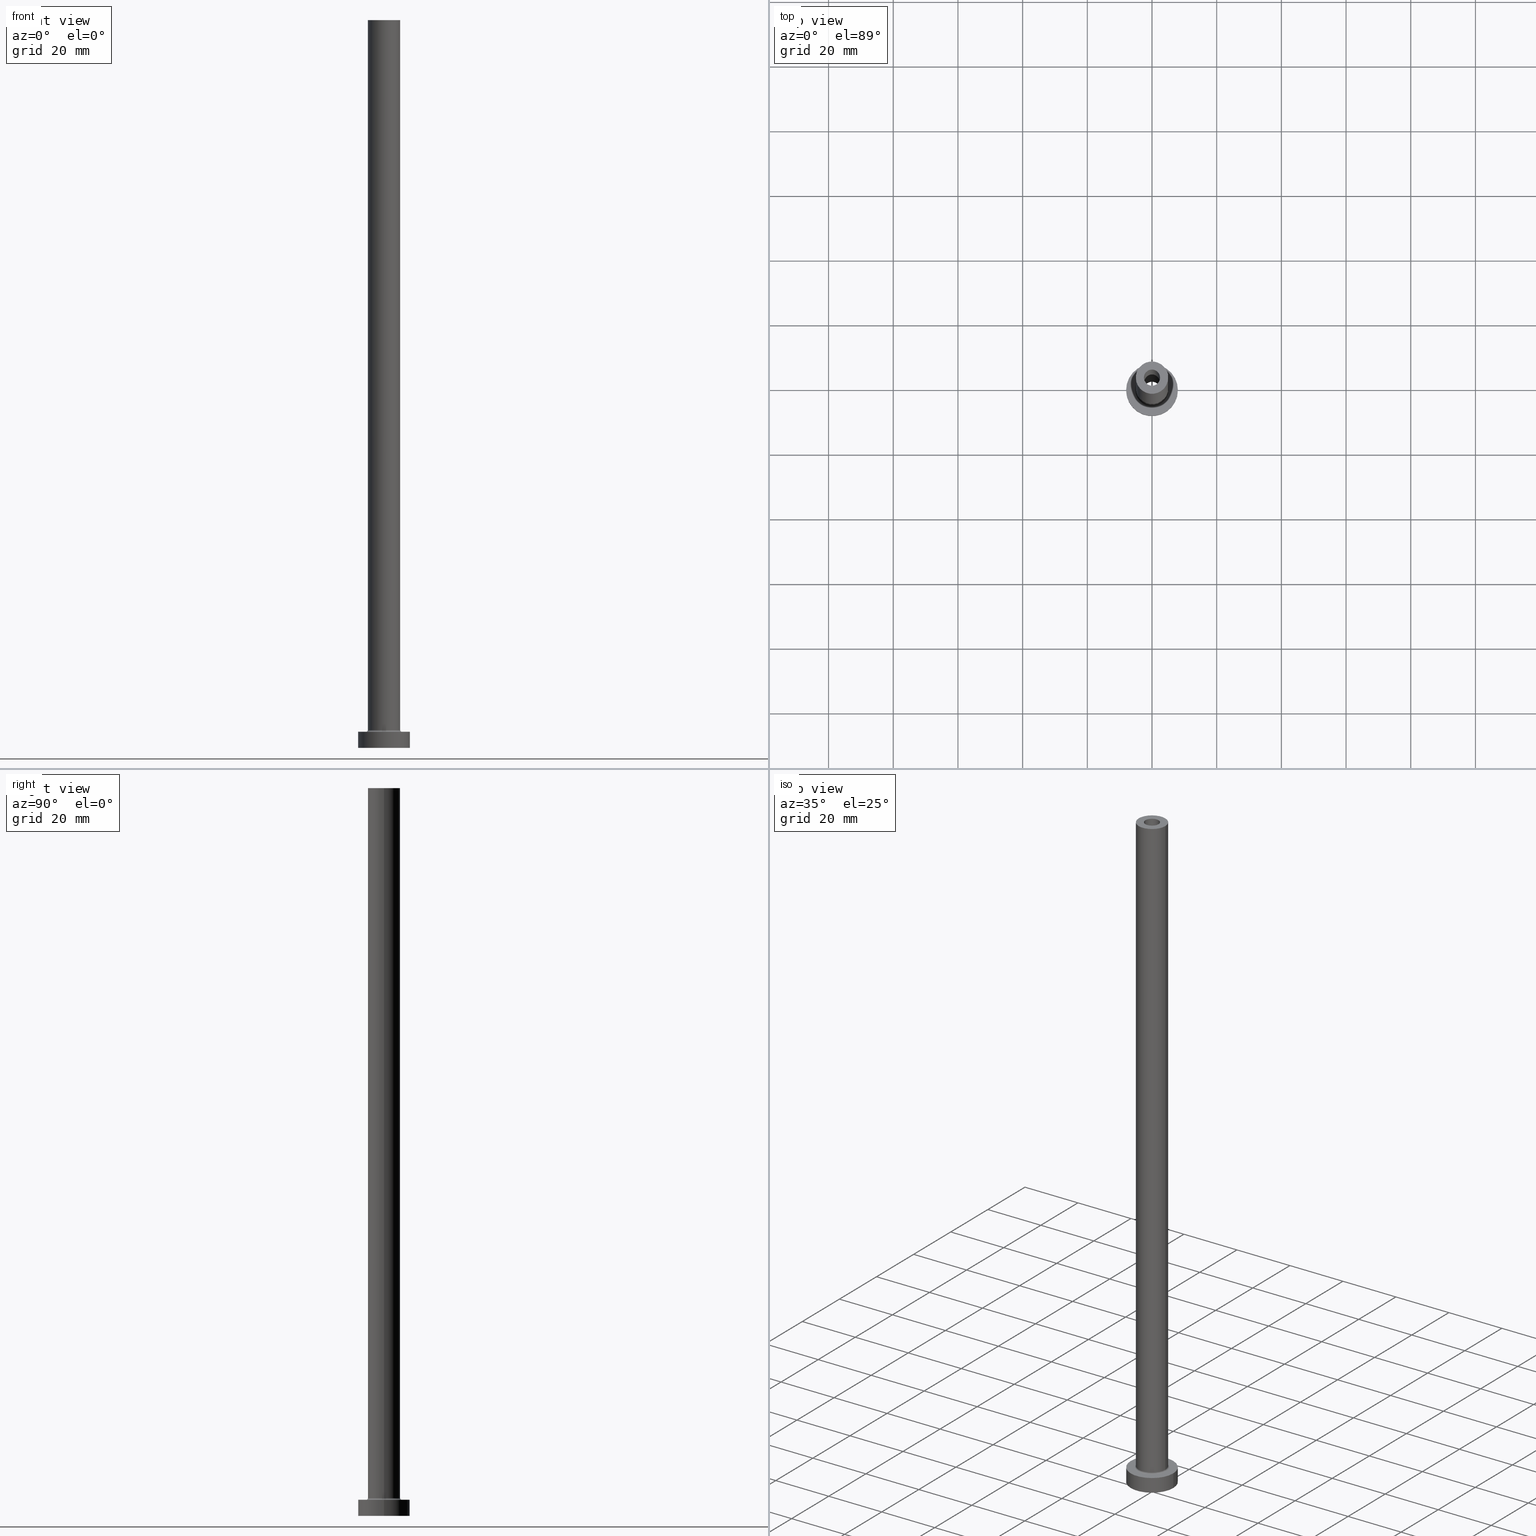
[diagram: canonical four-view strip — front | top / right | iso, engineering-drawing reading convention]
A machine part, canonical four-view strip (front | top / right | iso — engineering-drawing reading convention). The complete STEP part file that produces these views, byte-faithful:
ISO-10303-21;
HEADER;
FILE_DESCRIPTION (( 'STEP AP203' ),
    '1' );
FILE_NAME ('da0d.STEP',
    '2023-02-13T16:59:19',
    ( '' ),
    ( '' ),
    'SwSTEP 2.0',
    'SolidWorks 2019',
    '' );
FILE_SCHEMA (( 'CONFIG_CONTROL_DESIGN' ));
ENDSEC;

DATA;
#1 = CARTESIAN_POINT ( 'NONE',  ( 0.000000000000000000, 0.000000000000000000, 5.000000000000000000 ) ) ;
#2 = ORIENTED_EDGE ( 'NONE', *, *, #53, .F. ) ;
#3 = PRODUCT_DEFINITION_SHAPE ( 'NONE', 'NONE',  #337 ) ;
#4 = FACE_OUTER_BOUND ( 'NONE', #381, .T. ) ;
#5 = EDGE_LOOP ( 'NONE', ( #417, #169, #101, #350 ) ) ;
#6 = PERSON_AND_ORGANIZATION_ROLE ( 'design_supplier' ) ;
#7 = CIRCLE ( 'NONE', #74, 8.000000000000000000 ) ;
#8 = DIRECTION ( 'NONE',  ( -0.000000000000000000, -0.000000000000000000, -1.000000000000000000 ) ) ;
#9 = PERSON_AND_ORGANIZATION_ROLE ( 'creator' ) ;
#10 = CYLINDRICAL_SURFACE ( 'NONE', #221, 5.000000000000000000 ) ;
#11 = ADVANCED_FACE ( 'NONE', ( #149 ), #440, .F. ) ;
#12 = APPROVAL_DATE_TIME ( #219, #306 ) ;
#13 = DIRECTION ( 'NONE',  ( 1.224646799147353207E-16, 1.000000000000000000, -0.000000000000000000 ) ) ;
#14 = AXIS2_PLACEMENT_3D ( 'NONE', #17, #372, #434 ) ;
#15 = CIRCLE ( 'NONE', #267, 2.649999999999999911 ) ;
#16 = DIRECTION ( 'NONE',  ( 1.000000000000000000, 0.000000000000000000, 0.000000000000000000 ) ) ;
#17 = CARTESIAN_POINT ( 'NONE',  ( 0.000000000000000000, 0.000000000000000000, 225.0000000000000000 ) ) ;
#18 = EDGE_CURVE ( 'NONE', #355, #313, #265, .T. ) ;
#19 = CARTESIAN_POINT ( 'NONE',  ( -2.500000000000000000, 0.000000000000000000, 180.0000000000000000 ) ) ;
#20 = CARTESIAN_POINT ( 'NONE',  ( 2.500000000000000000, 3.061616997868383141E-16, 225.0000000000000000 ) ) ;
#21 = AXIS2_PLACEMENT_3D ( 'NONE', #437, #405, #190 ) ;
#22 = SECURITY_CLASSIFICATION ( '', '', #115 ) ;
#23 = DIRECTION ( 'NONE',  ( 0.000000000000000000, 0.000000000000000000, 1.000000000000000000 ) ) ;
#24 = ADVANCED_FACE ( 'NONE', ( #118 ), #10, .T. ) ;
#25 = DIRECTION ( 'NONE',  ( 0.000000000000000000, 0.000000000000000000, -1.000000000000000000 ) ) ;
#26 = ORIENTED_EDGE ( 'NONE', *, *, #241, .T. ) ;
#27 = DIRECTION ( 'NONE',  ( -0.000000000000000000, -0.000000000000000000, -1.000000000000000000 ) ) ;
#28 = CIRCLE ( 'NONE', #63, 5.500000000000000000 ) ;
#29 = DIRECTION ( 'NONE',  ( -1.000000000000000000, 0.000000000000000000, 0.000000000000000000 ) ) ;
#30 = EDGE_CURVE ( 'NONE', #216, #31, #377, .T. ) ;
#31 = VERTEX_POINT ( 'NONE', #161 ) ;
#32 = CARTESIAN_POINT ( 'NONE',  ( 8.000000000000000000, 9.797174393178825657E-16, 5.000000000000000000 ) ) ;
#33 = ORIENTED_EDGE ( 'NONE', *, *, #30, .T. ) ;
#34 = DIRECTION ( 'NONE',  ( 0.000000000000000000, 0.000000000000000000, 1.000000000000000000 ) ) ;
#35 = VERTEX_POINT ( 'NONE', #124 ) ;
#36 = TOROIDAL_SURFACE ( 'NONE', #393, 5.500000000000000000, 0.5000000000000000000 ) ;
#37 = LOCAL_TIME ( 17, 59, 19.00000000000000000, #338 ) ;
#38 = CARTESIAN_POINT ( 'NONE',  ( 0.000000000000000000, 0.000000000000000000, 180.0000000000000000 ) ) ;
#39 = VERTEX_POINT ( 'NONE', #220 ) ;
#40 = APPLICATION_PROTOCOL_DEFINITION ( 'international standard', 'config_control_design', 1994, #89 ) ;
#41 = ORIENTED_EDGE ( 'NONE', *, *, #53, .T. ) ;
#42 = AXIS2_PLACEMENT_3D ( 'NONE', #300, #264, #119 ) ;
#43 = CARTESIAN_POINT ( 'NONE',  ( 0.000000000000000000, 0.000000000000000000, 5.000000000000000000 ) ) ;
#44 = MECHANICAL_CONTEXT ( 'NONE', #89, 'mechanical' ) ;
#45 = EDGE_CURVE ( 'NONE', #39, #305, #193, .T. ) ;
#46 = DIRECTION ( 'NONE',  ( -0.000000000000000000, -0.000000000000000000, -1.000000000000000000 ) ) ;
#47 = MANIFOLD_SOLID_BREP ( 'Odebrat vysunut�m4', #70 ) ;
#48 = CARTESIAN_POINT ( 'NONE',  ( -5.500000000000000000, 6.735557395310442023E-16, 5.500000000000005329 ) ) ;
#49 = APPROVAL_ROLE ( '' ) ;
#50 = CARTESIAN_POINT ( 'NONE',  ( -2.649999999999999911, 0.000000000000000000, 0.000000000000000000 ) ) ;
#51 = DATE_AND_TIME ( #263, #385 ) ;
#52 = LINE ( 'NONE', #186, #103 ) ;
#53 = EDGE_CURVE ( 'NONE', #313, #67, #448, .T. ) ;
#54 = CARTESIAN_POINT ( 'NONE',  ( 0.000000000000000000, 0.000000000000000000, 5.000000000000000000 ) ) ;
#55 = CARTESIAN_POINT ( 'NONE',  ( 0.000000000000000000, 0.000000000000000000, 0.000000000000000000 ) ) ;
#56 = CYLINDRICAL_SURFACE ( 'NONE', #303, 2.500000000000000000 ) ;
#57 = CIRCLE ( 'NONE', #328, 2.500000000000000000 ) ;
#58 = EDGE_CURVE ( 'NONE', #235, #286, #356, .T. ) ;
#59 = DIRECTION ( 'NONE',  ( 0.000000000000000000, 0.000000000000000000, -1.000000000000000000 ) ) ;
#60 = DIRECTION ( 'NONE',  ( 1.000000000000000000, 0.000000000000000000, -0.000000000000000000 ) ) ;
#61 = DIRECTION ( 'NONE',  ( 0.000000000000000000, 0.000000000000000000, 1.000000000000000000 ) ) ;
#62 = ORIENTED_EDGE ( 'NONE', *, *, #370, .T. ) ;
#63 = AXIS2_PLACEMENT_3D ( 'NONE', #314, #109, #422 ) ;
#64 = AXIS2_PLACEMENT_3D ( 'NONE', #66, #61, #357 ) ;
#65 = CC_DESIGN_APPROVAL ( #342, ( #225 ) ) ;
#66 = CARTESIAN_POINT ( 'NONE',  ( 0.000000000000000000, 0.000000000000000000, 180.0000000000000000 ) ) ;
#67 = VERTEX_POINT ( 'NONE', #363 ) ;
#68 = CARTESIAN_POINT ( 'NONE',  ( 0.000000000000000000, 0.000000000000000000, 5.000000000000000000 ) ) ;
#69 = ORIENTED_EDGE ( 'NONE', *, *, #370, .F. ) ;
#70 = CLOSED_SHELL ( 'NONE', ( #205, #312, #415, #24, #191, #233, #375, #158, #266, #73, #299, #185, #141, #11 ) ) ;
#71 = CARTESIAN_POINT ( 'NONE',  ( -5.000000000000000000, 0.000000000000000000, 5.500000000000005329 ) ) ;
#72 = ORIENTED_EDGE ( 'NONE', *, *, #279, .F. ) ;
#73 = ADVANCED_FACE ( 'NONE', ( #262, #369 ), #367, .T. ) ;
#74 = AXIS2_PLACEMENT_3D ( 'NONE', #199, #165, #171 ) ;
#75 =( NAMED_UNIT ( * ) SI_UNIT ( $, .STERADIAN. ) SOLID_ANGLE_UNIT ( ) );
#76 = ORIENTED_EDGE ( 'NONE', *, *, #79, .F. ) ;
#77 = PERSON_AND_ORGANIZATION_ROLE ( 'creator' ) ;
#78 = CARTESIAN_POINT ( 'NONE',  ( -5.000000000000000000, 0.000000000000000000, 225.0000000000000000 ) ) ;
#79 = EDGE_CURVE ( 'NONE', #313, #245, #153, .T. ) ;
#80 = DATE_AND_TIME ( #436, #438 ) ;
#81 = CARTESIAN_POINT ( 'NONE',  ( -2.500000000000000000, 0.000000000000000000, 225.0000000000000000 ) ) ;
#82 = CIRCLE ( 'NONE', #413, 5.500000000000000000 ) ;
#83 = CARTESIAN_POINT ( 'NONE',  ( 0.000000000000000000, 0.000000000000000000, 225.0000000000000000 ) ) ;
#84 = COORDINATED_UNIVERSAL_TIME_OFFSET ( 1, 0, .AHEAD. ) ;
#85 = CARTESIAN_POINT ( 'NONE',  ( 0.000000000000000000, 0.000000000000000000, 180.0000000000000000 ) ) ;
#86 = PERSON_AND_ORGANIZATION ( #196, #402 ) ;
#87 = DIRECTION ( 'NONE',  ( -1.000000000000000000, 1.224646799147351482E-16, 0.000000000000000000 ) ) ;
#88 = CARTESIAN_POINT ( 'NONE',  ( 0.000000000000000000, 0.000000000000000000, 225.0000000000000000 ) ) ;
#89 = APPLICATION_CONTEXT ( 'configuration controlled 3d designs of mechanical parts and assemblies' ) ;
#90 = FACE_OUTER_BOUND ( 'NONE', #167, .T. ) ;
#91 = ORIENTED_EDGE ( 'NONE', *, *, #404, .F. ) ;
#92 = EDGE_CURVE ( 'NONE', #419, #67, #52, .T. ) ;
#93 = FACE_BOUND ( 'NONE', #177, .T. ) ;
#94 = VECTOR ( 'NONE', #335, 1000.000000000000000 ) ;
#95 = AXIS2_PLACEMENT_3D ( 'NONE', #160, #188, #228 ) ;
#96 = CYLINDRICAL_SURFACE ( 'NONE', #283, 8.000000000000000000 ) ;
#97 = CIRCLE ( 'NONE', #384, 8.000000000000000000 ) ;
#98 = VERTEX_POINT ( 'NONE', #298 ) ;
#99 = DIRECTION ( 'NONE',  ( 0.000000000000000000, 0.000000000000000000, -1.000000000000000000 ) ) ;
#100 = DIRECTION ( 'NONE',  ( -0.000000000000000000, -0.000000000000000000, -1.000000000000000000 ) ) ;
#101 = ORIENTED_EDGE ( 'NONE', *, *, #421, .T. ) ;
#102 = EDGE_CURVE ( 'NONE', #39, #35, #214, .T. ) ;
#103 = VECTOR ( 'NONE', #46, 1000.000000000000000 ) ;
#104 = FACE_OUTER_BOUND ( 'NONE', #396, .T. ) ;
#105 = ORIENTED_EDGE ( 'NONE', *, *, #45, .T. ) ;
#106 =( GEOMETRIC_REPRESENTATION_CONTEXT ( 3 ) GLOBAL_UNCERTAINTY_ASSIGNED_CONTEXT ( ( #397 ) ) GLOBAL_UNIT_ASSIGNED_CONTEXT ( ( #390, #107, #75 ) ) REPRESENTATION_CONTEXT ( 'NONE', 'WORKASPACE' ) );
#107 =( NAMED_UNIT ( * ) PLANE_ANGLE_UNIT ( ) SI_UNIT ( $, .RADIAN. ) );
#108 = ORIENTED_EDGE ( 'NONE', *, *, #150, .T. ) ;
#109 = DIRECTION ( 'NONE',  ( -0.000000000000000000, -0.000000000000000000, -1.000000000000000000 ) ) ;
#110 = EDGE_CURVE ( 'NONE', #98, #305, #274, .T. ) ;
#111 = ORIENTED_EDGE ( 'NONE', *, *, #45, .F. ) ;
#112 = DIRECTION ( 'NONE',  ( -0.000000000000000000, -0.000000000000000000, -1.000000000000000000 ) ) ;
#113 = ORIENTED_EDGE ( 'NONE', *, *, #58, .F. ) ;
#114 = AXIS2_PLACEMENT_3D ( 'NONE', #129, #126, #382 ) ;
#115 = SECURITY_CLASSIFICATION_LEVEL ( 'unclassified' ) ;
#116 = ORIENTED_EDGE ( 'NONE', *, *, #404, .T. ) ;
#117 = EDGE_CURVE ( 'NONE', #31, #289, #257, .T. ) ;
#118 = FACE_OUTER_BOUND ( 'NONE', #181, .T. ) ;
#119 = DIRECTION ( 'NONE',  ( 1.000000000000000000, 0.000000000000000000, 0.000000000000000000 ) ) ;
#120 = COORDINATED_UNIVERSAL_TIME_OFFSET ( 1, 0, .AHEAD. ) ;
#121 = APPROVAL_PERSON_ORGANIZATION ( #184, #326, #294 ) ;
#122 = CARTESIAN_POINT ( 'NONE',  ( 0.000000000000000000, 0.000000000000000000, 225.0000000000000000 ) ) ;
#123 = EDGE_CURVE ( 'NONE', #209, #144, #458, .T. ) ;
#124 = CARTESIAN_POINT ( 'NONE',  ( 2.500000000000000000, 3.061616997868383141E-16, 225.0000000000000000 ) ) ;
#125 = DIRECTION ( 'NONE',  ( -0.000000000000000000, -0.000000000000000000, -1.000000000000000000 ) ) ;
#126 = DIRECTION ( 'NONE',  ( -0.000000000000000000, -0.000000000000000000, -1.000000000000000000 ) ) ;
#127 = AXIS2_PLACEMENT_3D ( 'NONE', #364, #151, #371 ) ;
#128 = ORIENTED_EDGE ( 'NONE', *, *, #79, .T. ) ;
#129 = CARTESIAN_POINT ( 'NONE',  ( 0.000000000000000000, 0.000000000000000000, 5.000000000000000000 ) ) ;
#130 = ORIENTED_EDGE ( 'NONE', *, *, #123, .T. ) ;
#131 = PLANE ( 'NONE',  #224 ) ;
#132 = CARTESIAN_POINT ( 'NONE',  ( -2.649999999999999911, 0.000000000000000000, 180.0000000000000000 ) ) ;
#133 = CIRCLE ( 'NONE', #260, 0.5000000000000004441 ) ;
#134 = DIRECTION ( 'NONE',  ( 0.000000000000000000, 0.000000000000000000, 1.000000000000000000 ) ) ;
#135 = EDGE_CURVE ( 'NONE', #67, #313, #208, .T. ) ;
#136 = ORIENTED_EDGE ( 'NONE', *, *, #246, .T. ) ;
#137 = DIRECTION ( 'NONE',  ( 1.000000000000000000, 0.000000000000000000, 0.000000000000000000 ) ) ;
#138 = ORIENTED_EDGE ( 'NONE', *, *, #197, .T. ) ;
#139 = ORIENTED_EDGE ( 'NONE', *, *, #435, .F. ) ;
#140 = AXIS2_PLACEMENT_3D ( 'NONE', #168, #27, #450 ) ;
#141 = ADVANCED_FACE ( 'NONE', ( #399, #259 ), #223, .F. ) ;
#142 = ORIENTED_EDGE ( 'NONE', *, *, #110, .F. ) ;
#143 = DIRECTION ( 'NONE',  ( 1.000000000000000000, 0.000000000000000000, 0.000000000000000000 ) ) ;
#144 = VERTEX_POINT ( 'NONE', #50 ) ;
#145 = PERSON_AND_ORGANIZATION ( #196, #402 ) ;
#146 = ORIENTED_EDGE ( 'NONE', *, *, #430, .T. ) ;
#147 = CIRCLE ( 'NONE', #452, 8.000000000000000000 ) ;
#148 = DATE_TIME_ROLE ( 'classification_date' ) ;
#149 = FACE_OUTER_BOUND ( 'NONE', #179, .T. ) ;
#150 = EDGE_CURVE ( 'NONE', #35, #98, #341, .T. ) ;
#151 = DIRECTION ( 'NONE',  ( 0.000000000000000000, 0.000000000000000000, 1.000000000000000000 ) ) ;
#152 = DIRECTION ( 'NONE',  ( -1.000000000000000000, 0.000000000000000000, 0.000000000000000000 ) ) ;
#153 = CIRCLE ( 'NONE', #155, 0.5000000000000004441 ) ;
#154 = APPROVAL_DATE_TIME ( #255, #326 ) ;
#155 = AXIS2_PLACEMENT_3D ( 'NONE', #48, #13, #87 ) ;
#156 = DIRECTION ( 'NONE',  ( 1.000000000000000000, 0.000000000000000000, -0.000000000000000000 ) ) ;
#157 = VECTOR ( 'NONE', #25, 1000.000000000000000 ) ;
#158 = ADVANCED_FACE ( 'NONE', ( #93, #90 ), #131, .F. ) ;
#159 = LOCAL_TIME ( 17, 59, 19.00000000000000000, #84 ) ;
#160 = CARTESIAN_POINT ( 'NONE',  ( 0.000000000000000000, 0.000000000000000000, 225.0000000000000000 ) ) ;
#161 = CARTESIAN_POINT ( 'NONE',  ( -8.000000000000000000, 0.000000000000000000, 5.000000000000000000 ) ) ;
#162 = FACE_OUTER_BOUND ( 'NONE', #315, .T. ) ;
#163 = CC_DESIGN_PERSON_AND_ORGANIZATION_ASSIGNMENT ( #226, #77, ( #337 ) ) ;
#164 = AXIS2_PLACEMENT_3D ( 'NONE', #178, #215, #392 ) ;
#165 = DIRECTION ( 'NONE',  ( 0.000000000000000000, 0.000000000000000000, 1.000000000000000000 ) ) ;
#166 = DIRECTION ( 'NONE',  ( 0.000000000000000000, 0.000000000000000000, -1.000000000000000000 ) ) ;
#167 = EDGE_LOOP ( 'NONE', ( #72, #175 ) ) ;
#168 = CARTESIAN_POINT ( 'NONE',  ( 0.000000000000000000, 0.000000000000000000, 225.0000000000000000 ) ) ;
#169 = ORIENTED_EDGE ( 'NONE', *, *, #58, .T. ) ;
#170 = CC_DESIGN_PERSON_AND_ORGANIZATION_ASSIGNMENT ( #406, #6, ( #225 ) ) ;
#171 = DIRECTION ( 'NONE',  ( 1.000000000000000000, 0.000000000000000000, 0.000000000000000000 ) ) ;
#172 = CIRCLE ( 'NONE', #238, 5.000000000000000000 ) ;
#173 = CC_DESIGN_SECURITY_CLASSIFICATION ( #22, ( #225 ) ) ;
#174 = DIRECTION ( 'NONE',  ( 0.000000000000000000, 0.000000000000000000, -1.000000000000000000 ) ) ;
#175 = ORIENTED_EDGE ( 'NONE', *, *, #349, .F. ) ;
#176 = DIRECTION ( 'NONE',  ( 0.000000000000000000, 0.000000000000000000, -1.000000000000000000 ) ) ;
#177 = EDGE_LOOP ( 'NONE', ( #183, #423 ) ) ;
#178 = CARTESIAN_POINT ( 'NONE',  ( 0.000000000000000000, 0.000000000000000000, 225.0000000000000000 ) ) ;
#179 = EDGE_LOOP ( 'NONE', ( #324, #136, #105, #142 ) ) ;
#180 = CC_DESIGN_APPROVAL ( #326, ( #337 ) ) ;
#181 = EDGE_LOOP ( 'NONE', ( #359, #247, #451, #319 ) ) ;
#182 = PLANE ( 'NONE',  #317 ) ;
#183 = ORIENTED_EDGE ( 'NONE', *, *, #409, .F. ) ;
#184 = PERSON_AND_ORGANIZATION ( #196, #402 ) ;
#185 = ADVANCED_FACE ( 'NONE', ( #236 ), #273, .F. ) ;
#186 = CARTESIAN_POINT ( 'NONE',  ( 5.000000000000000000, 6.123233995736766282E-16, 225.0000000000000000 ) ) ;
#187 = AXIS2_PLACEMENT_3D ( 'NONE', #85, #327, #330 ) ;
#188 = DIRECTION ( 'NONE',  ( 0.000000000000000000, 0.000000000000000000, -1.000000000000000000 ) ) ;
#189 = PERSON_AND_ORGANIZATION_ROLE ( 'classification_officer' ) ;
#190 = DIRECTION ( 'NONE',  ( 1.000000000000000000, 0.000000000000000000, 0.000000000000000000 ) ) ;
#191 = ADVANCED_FACE ( 'NONE', ( #378 ), #96, .T. ) ;
#192 = APPROVAL_STATUS ( 'not_yet_approved' ) ;
#193 = LINE ( 'NONE', #81, #94 ) ;
#194 = PRODUCT ( 'da0d', 'da0d', '', ( #44 ) ) ;
#195 = DIRECTION ( 'NONE',  ( 1.000000000000000000, 0.000000000000000000, -0.000000000000000000 ) ) ;
#196 = PERSON ( 'NEUR�EN�', 'NEUR�EN�', 'NEUR�EN�', ('NEUR�EN�'), ('NEUR�EN�'), ('NEUR�EN�') ) ;
#197 = EDGE_CURVE ( 'NONE', #212, #245, #82, .T. ) ;
#198 = CARTESIAN_POINT ( 'NONE',  ( 0.000000000000000000, 0.000000000000000000, 225.0000000000000000 ) ) ;
#199 = CARTESIAN_POINT ( 'NONE',  ( 0.000000000000000000, 0.000000000000000000, 0.000000000000000000 ) ) ;
#200 = ORIENTED_EDGE ( 'NONE', *, *, #18, .T. ) ;
#201 = AXIS2_PLACEMENT_3D ( 'NONE', #227, #125, #432 ) ;
#202 = CARTESIAN_POINT ( 'NONE',  ( -8.000000000000000000, 0.000000000000000000, 0.000000000000000000 ) ) ;
#203 = ORIENTED_EDGE ( 'NONE', *, *, #421, .F. ) ;
#204 = DIRECTION ( 'NONE',  ( -1.000000000000000000, 0.000000000000000000, 0.000000000000000000 ) ) ;
#205 = ADVANCED_FACE ( 'NONE', ( #304 ), #56, .F. ) ;
#206 = DIRECTION ( 'NONE',  ( 1.000000000000000000, 0.000000000000000000, 0.000000000000000000 ) ) ;
#207 = ADVANCED_BREP_SHAPE_REPRESENTATION ( 'da0d', ( #47, #127 ), #106 ) ;
#208 = CIRCLE ( 'NONE', #21, 5.000000000000000000 ) ;
#209 = VERTEX_POINT ( 'NONE', #444 ) ;
#210 = CARTESIAN_POINT ( 'NONE',  ( 5.500000000000000000, 0.000000000000000000, 5.500000000000005329 ) ) ;
#211 = PRODUCT_RELATED_PRODUCT_CATEGORY ( 'detail', '', ( #194 ) ) ;
#212 = VERTEX_POINT ( 'NONE', #340 ) ;
#213 = ORIENTED_EDGE ( 'NONE', *, *, #117, .F. ) ;
#214 = CIRCLE ( 'NONE', #14, 2.500000000000000000 ) ;
#215 = DIRECTION ( 'NONE',  ( 0.000000000000000000, 0.000000000000000000, 1.000000000000000000 ) ) ;
#216 = VERTEX_POINT ( 'NONE', #345 ) ;
#217 = VECTOR ( 'NONE', #166, 1000.000000000000000 ) ;
#218 = ORIENTED_EDGE ( 'NONE', *, *, #398, .F. ) ;
#219 = DATE_AND_TIME ( #288, #37 ) ;
#220 = CARTESIAN_POINT ( 'NONE',  ( -2.500000000000000000, 0.000000000000000000, 225.0000000000000000 ) ) ;
#221 = AXIS2_PLACEMENT_3D ( 'NONE', #122, #290, #152 ) ;
#222 = DATE_TIME_ROLE ( 'creation_date' ) ;
#223 = PLANE ( 'NONE',  #336 ) ;
#224 = AXIS2_PLACEMENT_3D ( 'NONE', #55, #276, #60 ) ;
#225 = PRODUCT_DEFINITION_FORMATION_WITH_SPECIFIED_SOURCE ( 'LIBOVOLN�', '', #194, .NOT_KNOWN. ) ;
#226 = PERSON_AND_ORGANIZATION ( #196, #402 ) ;
#227 = CARTESIAN_POINT ( 'NONE',  ( 0.000000000000000000, 0.000000000000000000, 0.000000000000000000 ) ) ;
#228 = DIRECTION ( 'NONE',  ( -1.000000000000000000, 0.000000000000000000, 0.000000000000000000 ) ) ;
#229 = APPLICATION_PROTOCOL_DEFINITION ( 'international standard', 'config_control_design', 1994, #346 ) ;
#230 = CARTESIAN_POINT ( 'NONE',  ( -8.000000000000000000, 0.000000000000000000, 5.000000000000000000 ) ) ;
#231 = CIRCLE ( 'NONE', #64, 2.500000000000000000 ) ;
#232 = DIRECTION ( 'NONE',  ( 0.000000000000000000, 0.000000000000000000, 1.000000000000000000 ) ) ;
#233 = ADVANCED_FACE ( 'NONE', ( #446 ), #243, .T. ) ;
#234 = FACE_OUTER_BOUND ( 'NONE', #352, .T. ) ;
#235 = VERTEX_POINT ( 'NONE', #410 ) ;
#236 = FACE_OUTER_BOUND ( 'NONE', #5, .T. ) ;
#237 = ORIENTED_EDGE ( 'NONE', *, *, #246, .F. ) ;
#238 = AXIS2_PLACEMENT_3D ( 'NONE', #88, #232, #308 ) ;
#239 = APPROVAL_PERSON_ORGANIZATION ( #86, #306, #49 ) ;
#240 = DIRECTION ( 'NONE',  ( -1.000000000000000000, 0.000000000000000000, 0.000000000000000000 ) ) ;
#241 = EDGE_CURVE ( 'NONE', #235, #209, #310, .T. ) ;
#242 = ORIENTED_EDGE ( 'NONE', *, *, #117, .T. ) ;
#243 = CYLINDRICAL_SURFACE ( 'NONE', #114, 8.000000000000000000 ) ;
#244 = DIRECTION ( 'NONE',  ( 0.000000000000000000, 0.000000000000000000, 1.000000000000000000 ) ) ;
#245 = VERTEX_POINT ( 'NONE', #442 ) ;
#246 = EDGE_CURVE ( 'NONE', #35, #39, #57, .T. ) ;
#247 = ORIENTED_EDGE ( 'NONE', *, *, #92, .T. ) ;
#248 = LINE ( 'NONE', #280, #428 ) ;
#249 = ORIENTED_EDGE ( 'NONE', *, *, #435, .T. ) ;
#250 = CARTESIAN_POINT ( 'NONE',  ( -5.000000000000000000, 0.000000000000000000, 225.0000000000000000 ) ) ;
#251 = ORIENTED_EDGE ( 'NONE', *, *, #320, .F. ) ;
#252 = ORIENTED_EDGE ( 'NONE', *, *, #449, .F. ) ;
#253 = TOROIDAL_SURFACE ( 'NONE', #373, 5.500000000000000000, 0.5000000000000000000 ) ;
#254 = CC_DESIGN_PERSON_AND_ORGANIZATION_ASSIGNMENT ( #366, #189, ( #22 ) ) ;
#255 = DATE_AND_TIME ( #433, #379 ) ;
#256 = ORIENTED_EDGE ( 'NONE', *, *, #349, .T. ) ;
#257 = LINE ( 'NONE', #230, #358 ) ;
#258 = CC_DESIGN_PERSON_AND_ORGANIZATION_ASSIGNMENT ( #325, #9, ( #225 ) ) ;
#259 = FACE_OUTER_BOUND ( 'NONE', #387, .T. ) ;
#260 = AXIS2_PLACEMENT_3D ( 'NONE', #210, #316, #174 ) ;
#261 = APPROVAL_STATUS ( 'not_yet_approved' ) ;
#262 = FACE_BOUND ( 'NONE', #391, .T. ) ;
#263 = CALENDAR_DATE ( 2023, 13, 2 ) ;
#264 = DIRECTION ( 'NONE',  ( 0.000000000000000000, 0.000000000000000000, 1.000000000000000000 ) ) ;
#265 = LINE ( 'NONE', #78, #334 ) ;
#266 = ADVANCED_FACE ( 'NONE', ( #234 ), #376, .T. ) ;
#267 = AXIS2_PLACEMENT_3D ( 'NONE', #454, #100, #424 ) ;
#268 = DIRECTION ( 'NONE',  ( -0.000000000000000000, -0.000000000000000000, -1.000000000000000000 ) ) ;
#269 = ORIENTED_EDGE ( 'NONE', *, *, #398, .T. ) ;
#270 = CARTESIAN_POINT ( 'NONE',  ( 2.649999999999999911, 3.245314017740485962E-16, 187.4953318805773677 ) ) ;
#271 = ORIENTED_EDGE ( 'NONE', *, *, #102, .T. ) ;
#272 = EDGE_CURVE ( 'NONE', #355, #419, #172, .T. ) ;
#273 = CYLINDRICAL_SURFACE ( 'NONE', #275, 2.649999999999999911 ) ;
#274 = CIRCLE ( 'NONE', #187, 2.500000000000000000 ) ;
#275 = AXIS2_PLACEMENT_3D ( 'NONE', #412, #59, #204 ) ;
#276 = DIRECTION ( 'NONE',  ( 0.000000000000000000, 0.000000000000000000, 1.000000000000000000 ) ) ;
#277 = DIRECTION ( 'NONE',  ( 0.000000000000000000, 0.000000000000000000, -1.000000000000000000 ) ) ;
#278 = ORIENTED_EDGE ( 'NONE', *, *, #135, .F. ) ;
#279 = EDGE_CURVE ( 'NONE', #289, #309, #7, .T. ) ;
#280 = CARTESIAN_POINT ( 'NONE',  ( -2.649999999999999911, 0.000000000000000000, 187.4953318805773677 ) ) ;
#281 = EDGE_LOOP ( 'NONE', ( #76, #278, #455, #252 ) ) ;
#282 = CARTESIAN_POINT ( 'NONE',  ( 5.000000000000000000, 6.123233995736766282E-16, 225.0000000000000000 ) ) ;
#283 = AXIS2_PLACEMENT_3D ( 'NONE', #54, #268, #240 ) ;
#284 = ORIENTED_EDGE ( 'NONE', *, *, #110, .T. ) ;
#285 = DIRECTION ( 'NONE',  ( 0.000000000000000000, 0.000000000000000000, 1.000000000000000000 ) ) ;
#286 = VERTEX_POINT ( 'NONE', #132 ) ;
#287 = ORIENTED_EDGE ( 'NONE', *, *, #272, .T. ) ;
#288 = CALENDAR_DATE ( 2023, 13, 2 ) ;
#289 = VERTEX_POINT ( 'NONE', #202 ) ;
#290 = DIRECTION ( 'NONE',  ( -0.000000000000000000, -0.000000000000000000, -1.000000000000000000 ) ) ;
#291 = CC_DESIGN_DATE_AND_TIME_ASSIGNMENT ( #80, #222, ( #337 ) ) ;
#292 = PERSON_AND_ORGANIZATION_ROLE ( 'design_owner' ) ;
#293 = CARTESIAN_POINT ( 'NONE',  ( 0.000000000000000000, 0.000000000000000000, 180.0000000000000000 ) ) ;
#294 = APPROVAL_ROLE ( '' ) ;
#295 = DIRECTION ( 'NONE',  ( 0.000000000000000000, 0.000000000000000000, 1.000000000000000000 ) ) ;
#296 = VECTOR ( 'NONE', #112, 1000.000000000000000 ) ;
#297 = CC_DESIGN_APPROVAL ( #306, ( #22 ) ) ;
#298 = CARTESIAN_POINT ( 'NONE',  ( 2.500000000000000000, 3.061616997868383141E-16, 180.0000000000000000 ) ) ;
#299 = ADVANCED_FACE ( 'NONE', ( #411 ), #36, .F. ) ;
#300 = CARTESIAN_POINT ( 'NONE',  ( 0.000000000000000000, 0.000000000000000000, 180.0000000000000000 ) ) ;
#301 = AXIS2_PLACEMENT_3D ( 'NONE', #332, #365, #339 ) ;
#302 = DIRECTION ( 'NONE',  ( -1.000000000000000000, 0.000000000000000000, 0.000000000000000000 ) ) ;
#303 = AXIS2_PLACEMENT_3D ( 'NONE', #198, #99, #302 ) ;
#304 = FACE_OUTER_BOUND ( 'NONE', #344, .T. ) ;
#305 = VERTEX_POINT ( 'NONE', #19 ) ;
#306 = APPROVAL ( #192, 'NEUR�EN�' ) ;
#307 = CARTESIAN_POINT ( 'NONE',  ( 8.000000000000000000, 9.797174393178825657E-16, 0.000000000000000000 ) ) ;
#308 = DIRECTION ( 'NONE',  ( 1.000000000000000000, 0.000000000000000000, 0.000000000000000000 ) ) ;
#309 = VERTEX_POINT ( 'NONE', #307 ) ;
#310 = LINE ( 'NONE', #270, #157 ) ;
#311 = LINE ( 'NONE', #32, #296 ) ;
#312 = ADVANCED_FACE ( 'NONE', ( #162 ), #354, .F. ) ;
#313 = VERTEX_POINT ( 'NONE', #71 ) ;
#314 = CARTESIAN_POINT ( 'NONE',  ( 0.000000000000000000, 0.000000000000000000, 5.000000000000000000 ) ) ;
#315 = EDGE_LOOP ( 'NONE', ( #62, #26, #130, #203 ) ) ;
#316 = DIRECTION ( 'NONE',  ( 0.000000000000000000, -1.000000000000000000, 0.000000000000000000 ) ) ;
#317 = AXIS2_PLACEMENT_3D ( 'NONE', #68, #34, #351 ) ;
#318 = APPROVAL_PERSON_ORGANIZATION ( #439, #342, #431 ) ;
#319 = ORIENTED_EDGE ( 'NONE', *, *, #18, .F. ) ;
#320 = EDGE_CURVE ( 'NONE', #67, #212, #133, .T. ) ;
#321 = FACE_BOUND ( 'NONE', #425, .T. ) ;
#322 = EDGE_LOOP ( 'NONE', ( #249, #284 ) ) ;
#323 = CARTESIAN_POINT ( 'NONE',  ( 0.000000000000000000, 0.000000000000000000, 187.4953318805773677 ) ) ;
#324 = ORIENTED_EDGE ( 'NONE', *, *, #150, .F. ) ;
#325 = PERSON_AND_ORGANIZATION ( #196, #402 ) ;
#326 = APPROVAL ( #329, 'NEUR�EN�' ) ;
#327 = DIRECTION ( 'NONE',  ( 0.000000000000000000, 0.000000000000000000, 1.000000000000000000 ) ) ;
#328 = AXIS2_PLACEMENT_3D ( 'NONE', #408, #23, #206 ) ;
#329 = APPROVAL_STATUS ( 'not_yet_approved' ) ;
#330 = DIRECTION ( 'NONE',  ( 1.000000000000000000, 0.000000000000000000, 0.000000000000000000 ) ) ;
#331 = DATE_AND_TIME ( #395, #159 ) ;
#332 = CARTESIAN_POINT ( 'NONE',  ( 0.000000000000000000, 0.000000000000000000, 5.500000000000005329 ) ) ;
#333 = AXIS2_PLACEMENT_3D ( 'NONE', #43, #295, #16 ) ;
#334 = VECTOR ( 'NONE', #8, 1000.000000000000000 ) ;
#335 = DIRECTION ( 'NONE',  ( 0.000000000000000000, 0.000000000000000000, -1.000000000000000000 ) ) ;
#336 = AXIS2_PLACEMENT_3D ( 'NONE', #293, #401, #156 ) ;
#337 = PRODUCT_DEFINITION ( 'NEZN�M�', '', #225, #461 ) ;
#338 = COORDINATED_UNIVERSAL_TIME_OFFSET ( 1, 0, .AHEAD. ) ;
#339 = DIRECTION ( 'NONE',  ( 1.000000000000000000, 0.000000000000000000, 0.000000000000000000 ) ) ;
#340 = CARTESIAN_POINT ( 'NONE',  ( 5.500000000000000000, 0.000000000000000000, 5.000000000000002665 ) ) ;
#341 = LINE ( 'NONE', #20, #217 ) ;
#342 = APPROVAL ( #261, 'NEUR�EN�' ) ;
#343 = ORIENTED_EDGE ( 'NONE', *, *, #197, .F. ) ;
#344 = EDGE_LOOP ( 'NONE', ( #271, #108, #139, #111 ) ) ;
#345 = CARTESIAN_POINT ( 'NONE',  ( 8.000000000000000000, 9.797174393178825657E-16, 5.000000000000000000 ) ) ;
#346 = APPLICATION_CONTEXT ( 'configuration controlled 3d designs of mechanical parts and assemblies' ) ;
#347 = DIRECTION ( 'NONE',  ( 1.000000000000000000, 0.000000000000000000, 0.000000000000000000 ) ) ;
#348 = CIRCLE ( 'NONE', #420, 2.649999999999999911 ) ;
#349 = EDGE_CURVE ( 'NONE', #309, #289, #97, .T. ) ;
#350 = ORIENTED_EDGE ( 'NONE', *, *, #409, .T. ) ;
#351 = DIRECTION ( 'NONE',  ( 1.000000000000000000, 0.000000000000000000, -0.000000000000000000 ) ) ;
#352 = EDGE_LOOP ( 'NONE', ( #394, #457, #200, #41 ) ) ;
#353 = AXIS2_PLACEMENT_3D ( 'NONE', #83, #407, #195 ) ;
#354 = CYLINDRICAL_SURFACE ( 'NONE', #400, 2.649999999999999911 ) ;
#355 = VERTEX_POINT ( 'NONE', #250 ) ;
#356 = CIRCLE ( 'NONE', #42, 2.649999999999999911 ) ;
#357 = DIRECTION ( 'NONE',  ( 1.000000000000000000, 0.000000000000000000, 0.000000000000000000 ) ) ;
#358 = VECTOR ( 'NONE', #441, 1000.000000000000000 ) ;
#359 = ORIENTED_EDGE ( 'NONE', *, *, #430, .F. ) ;
#360 = DIRECTION ( 'NONE',  ( 1.000000000000000000, 0.000000000000000000, 0.000000000000000000 ) ) ;
#361 = ORIENTED_EDGE ( 'NONE', *, *, #449, .T. ) ;
#362 = COORDINATED_UNIVERSAL_TIME_OFFSET ( 1, 0, .AHEAD. ) ;
#363 = CARTESIAN_POINT ( 'NONE',  ( 5.000000000000000000, 6.123233995736766282E-16, 5.500000000000005329 ) ) ;
#364 = CARTESIAN_POINT ( 'NONE',  ( 0.000000000000000000, 0.000000000000000000, 0.000000000000000000 ) ) ;
#365 = DIRECTION ( 'NONE',  ( 0.000000000000000000, 0.000000000000000000, 1.000000000000000000 ) ) ;
#366 = PERSON_AND_ORGANIZATION ( #196, #402 ) ;
#367 = PLANE ( 'NONE',  #353 ) ;
#368 = APPROVAL_DATE_TIME ( #51, #342 ) ;
#369 = FACE_OUTER_BOUND ( 'NONE', #429, .T. ) ;
#370 = EDGE_CURVE ( 'NONE', #286, #235, #348, .T. ) ;
#371 = DIRECTION ( 'NONE',  ( 1.000000000000000000, 0.000000000000000000, 0.000000000000000000 ) ) ;
#372 = DIRECTION ( 'NONE',  ( 0.000000000000000000, 0.000000000000000000, 1.000000000000000000 ) ) ;
#373 = AXIS2_PLACEMENT_3D ( 'NONE', #416, #244, #137 ) ;
#374 = DIRECTION ( 'NONE',  ( 1.000000000000000000, 0.000000000000000000, 0.000000000000000000 ) ) ;
#375 = ADVANCED_FACE ( 'NONE', ( #321, #104 ), #182, .T. ) ;
#376 = CYLINDRICAL_SURFACE ( 'NONE', #140, 5.000000000000000000 ) ;
#377 = CIRCLE ( 'NONE', #333, 8.000000000000000000 ) ;
#378 = FACE_OUTER_BOUND ( 'NONE', #389, .T. ) ;
#379 = LOCAL_TIME ( 17, 59, 19.00000000000000000, #403 ) ;
#380 = CARTESIAN_POINT ( 'NONE',  ( 0.000000000000000000, 0.000000000000000000, 5.000000000000000000 ) ) ;
#381 = EDGE_LOOP ( 'NONE', ( #2, #128, #343, #251 ) ) ;
#382 = DIRECTION ( 'NONE',  ( -1.000000000000000000, 0.000000000000000000, 0.000000000000000000 ) ) ;
#383 = DIRECTION ( 'NONE',  ( 1.000000000000000000, 0.000000000000000000, 0.000000000000000000 ) ) ;
#384 = AXIS2_PLACEMENT_3D ( 'NONE', #459, #386, #143 ) ;
#385 = LOCAL_TIME ( 17, 59, 19.00000000000000000, #120 ) ;
#386 = DIRECTION ( 'NONE',  ( 0.000000000000000000, 0.000000000000000000, 1.000000000000000000 ) ) ;
#387 = EDGE_LOOP ( 'NONE', ( #69, #113 ) ) ;
#388 = CC_DESIGN_DATE_AND_TIME_ASSIGNMENT ( #331, #148, ( #22 ) ) ;
#389 = EDGE_LOOP ( 'NONE', ( #426, #269, #256, #213 ) ) ;
#390 =( LENGTH_UNIT ( ) NAMED_UNIT ( * ) SI_UNIT ( .MILLI., .METRE. ) );
#391 = EDGE_LOOP ( 'NONE', ( #447, #237 ) ) ;
#392 = DIRECTION ( 'NONE',  ( 1.000000000000000000, 0.000000000000000000, 0.000000000000000000 ) ) ;
#393 = AXIS2_PLACEMENT_3D ( 'NONE', #453, #134, #374 ) ;
#394 = ORIENTED_EDGE ( 'NONE', *, *, #92, .F. ) ;
#395 = CALENDAR_DATE ( 2023, 13, 2 ) ;
#396 = EDGE_LOOP ( 'NONE', ( #116, #33 ) ) ;
#397 = UNCERTAINTY_MEASURE_WITH_UNIT (LENGTH_MEASURE( 1.000000000000000082E-05 ), #390, 'distance_accuracy_value', 'NONE');
#398 = EDGE_CURVE ( 'NONE', #216, #309, #311, .T. ) ;
#399 = FACE_BOUND ( 'NONE', #322, .T. ) ;
#400 = AXIS2_PLACEMENT_3D ( 'NONE', #323, #277, #29 ) ;
#401 = DIRECTION ( 'NONE',  ( 0.000000000000000000, 0.000000000000000000, 1.000000000000000000 ) ) ;
#402 = ORGANIZATION ( 'NEUR�EN�', 'NEUR�EN�', '' ) ;
#403 = COORDINATED_UNIVERSAL_TIME_OFFSET ( 1, 0, .AHEAD. ) ;
#404 = EDGE_CURVE ( 'NONE', #31, #216, #147, .T. ) ;
#405 = DIRECTION ( 'NONE',  ( 0.000000000000000000, 0.000000000000000000, 1.000000000000000000 ) ) ;
#406 = PERSON_AND_ORGANIZATION ( #196, #402 ) ;
#407 = DIRECTION ( 'NONE',  ( 0.000000000000000000, 0.000000000000000000, 1.000000000000000000 ) ) ;
#408 = CARTESIAN_POINT ( 'NONE',  ( 0.000000000000000000, 0.000000000000000000, 225.0000000000000000 ) ) ;
#409 = EDGE_CURVE ( 'NONE', #144, #209, #15, .T. ) ;
#410 = CARTESIAN_POINT ( 'NONE',  ( 2.649999999999999911, 3.245314017740485962E-16, 180.0000000000000000 ) ) ;
#411 = FACE_OUTER_BOUND ( 'NONE', #281, .T. ) ;
#412 = CARTESIAN_POINT ( 'NONE',  ( 0.000000000000000000, 0.000000000000000000, 187.4953318805773677 ) ) ;
#413 = AXIS2_PLACEMENT_3D ( 'NONE', #380, #414, #347 ) ;
#414 = DIRECTION ( 'NONE',  ( -0.000000000000000000, -0.000000000000000000, -1.000000000000000000 ) ) ;
#415 = ADVANCED_FACE ( 'NONE', ( #4 ), #253, .F. ) ;
#416 = CARTESIAN_POINT ( 'NONE',  ( 0.000000000000000000, 0.000000000000000000, 5.500000000000005329 ) ) ;
#417 = ORIENTED_EDGE ( 'NONE', *, *, #241, .F. ) ;
#418 = DIRECTION ( 'NONE',  ( 0.000000000000000000, 0.000000000000000000, 1.000000000000000000 ) ) ;
#419 = VERTEX_POINT ( 'NONE', #282 ) ;
#420 = AXIS2_PLACEMENT_3D ( 'NONE', #38, #418, #360 ) ;
#421 = EDGE_CURVE ( 'NONE', #286, #144, #248, .T. ) ;
#422 = DIRECTION ( 'NONE',  ( 1.000000000000000000, 0.000000000000000000, 0.000000000000000000 ) ) ;
#423 = ORIENTED_EDGE ( 'NONE', *, *, #123, .F. ) ;
#424 = DIRECTION ( 'NONE',  ( 1.000000000000000000, 0.000000000000000000, 0.000000000000000000 ) ) ;
#425 = EDGE_LOOP ( 'NONE', ( #138, #361 ) ) ;
#426 = ORIENTED_EDGE ( 'NONE', *, *, #30, .F. ) ;
#427 = SHAPE_DEFINITION_REPRESENTATION ( #3, #207 ) ;
#428 = VECTOR ( 'NONE', #176, 1000.000000000000000 ) ;
#429 = EDGE_LOOP ( 'NONE', ( #287, #146 ) ) ;
#430 = EDGE_CURVE ( 'NONE', #419, #355, #443, .T. ) ;
#431 = APPROVAL_ROLE ( '' ) ;
#432 = DIRECTION ( 'NONE',  ( 1.000000000000000000, 0.000000000000000000, 0.000000000000000000 ) ) ;
#433 = CALENDAR_DATE ( 2023, 13, 2 ) ;
#434 = DIRECTION ( 'NONE',  ( 1.000000000000000000, 0.000000000000000000, 0.000000000000000000 ) ) ;
#435 = EDGE_CURVE ( 'NONE', #305, #98, #231, .T. ) ;
#436 = CALENDAR_DATE ( 2023, 13, 2 ) ;
#437 = CARTESIAN_POINT ( 'NONE',  ( 0.000000000000000000, 0.000000000000000000, 5.500000000000005329 ) ) ;
#438 = LOCAL_TIME ( 17, 59, 19.00000000000000000, #362 ) ;
#439 = PERSON_AND_ORGANIZATION ( #196, #402 ) ;
#440 = CYLINDRICAL_SURFACE ( 'NONE', #95, 2.500000000000000000 ) ;
#441 = DIRECTION ( 'NONE',  ( -0.000000000000000000, -0.000000000000000000, -1.000000000000000000 ) ) ;
#442 = CARTESIAN_POINT ( 'NONE',  ( -5.500000000000000000, 6.735557395310442023E-16, 5.000000000000002665 ) ) ;
#443 = CIRCLE ( 'NONE', #164, 5.000000000000000000 ) ;
#444 = CARTESIAN_POINT ( 'NONE',  ( 2.649999999999999911, 3.245314017740485962E-16, 0.000000000000000000 ) ) ;
#445 = ORIENTED_EDGE ( 'NONE', *, *, #279, .T. ) ;
#446 = FACE_OUTER_BOUND ( 'NONE', #460, .T. ) ;
#447 = ORIENTED_EDGE ( 'NONE', *, *, #102, .F. ) ;
#448 = CIRCLE ( 'NONE', #301, 5.000000000000000000 ) ;
#449 = EDGE_CURVE ( 'NONE', #245, #212, #28, .T. ) ;
#450 = DIRECTION ( 'NONE',  ( -1.000000000000000000, 0.000000000000000000, 0.000000000000000000 ) ) ;
#451 = ORIENTED_EDGE ( 'NONE', *, *, #135, .T. ) ;
#452 = AXIS2_PLACEMENT_3D ( 'NONE', #1, #285, #383 ) ;
#453 = CARTESIAN_POINT ( 'NONE',  ( 0.000000000000000000, 0.000000000000000000, 5.500000000000005329 ) ) ;
#454 = CARTESIAN_POINT ( 'NONE',  ( 0.000000000000000000, 0.000000000000000000, 0.000000000000000000 ) ) ;
#455 = ORIENTED_EDGE ( 'NONE', *, *, #320, .T. ) ;
#456 = CC_DESIGN_PERSON_AND_ORGANIZATION_ASSIGNMENT ( #145, #292, ( #194 ) ) ;
#457 = ORIENTED_EDGE ( 'NONE', *, *, #272, .F. ) ;
#458 = CIRCLE ( 'NONE', #201, 2.649999999999999911 ) ;
#459 = CARTESIAN_POINT ( 'NONE',  ( 0.000000000000000000, 0.000000000000000000, 0.000000000000000000 ) ) ;
#460 = EDGE_LOOP ( 'NONE', ( #218, #91, #242, #445 ) ) ;
#461 = DESIGN_CONTEXT ( 'detailed design', #346, 'design' ) ;
ENDSEC;
END-ISO-10303-21;
